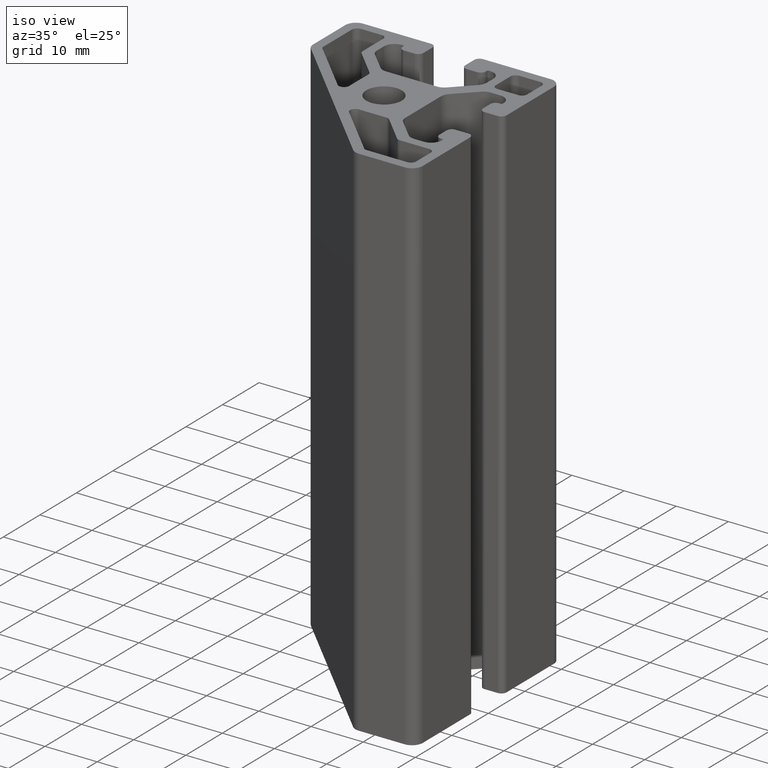
[diagram: clean part render]
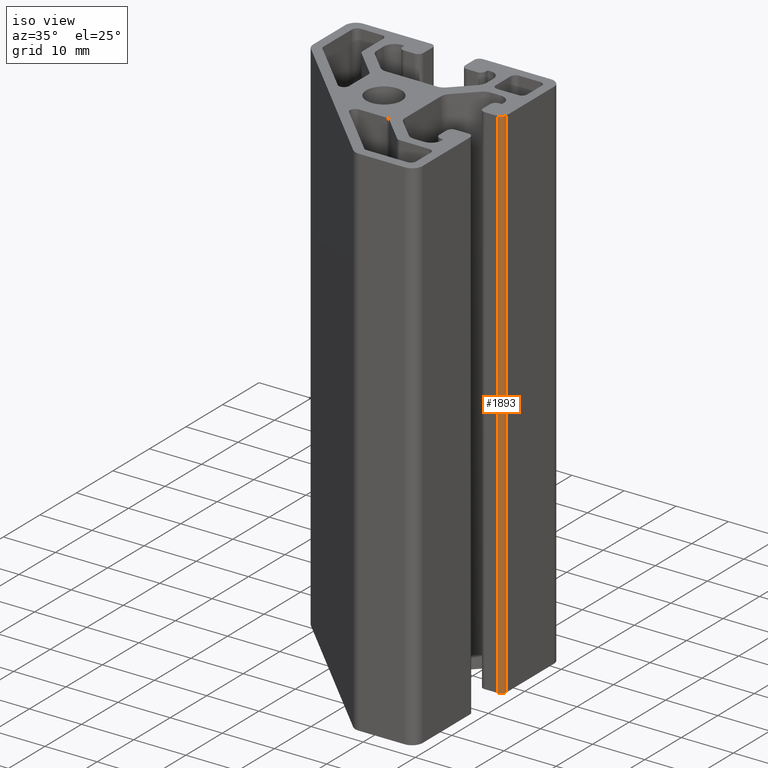
[diagram: same view with one face highlighted and labeled with its STEP entity id]
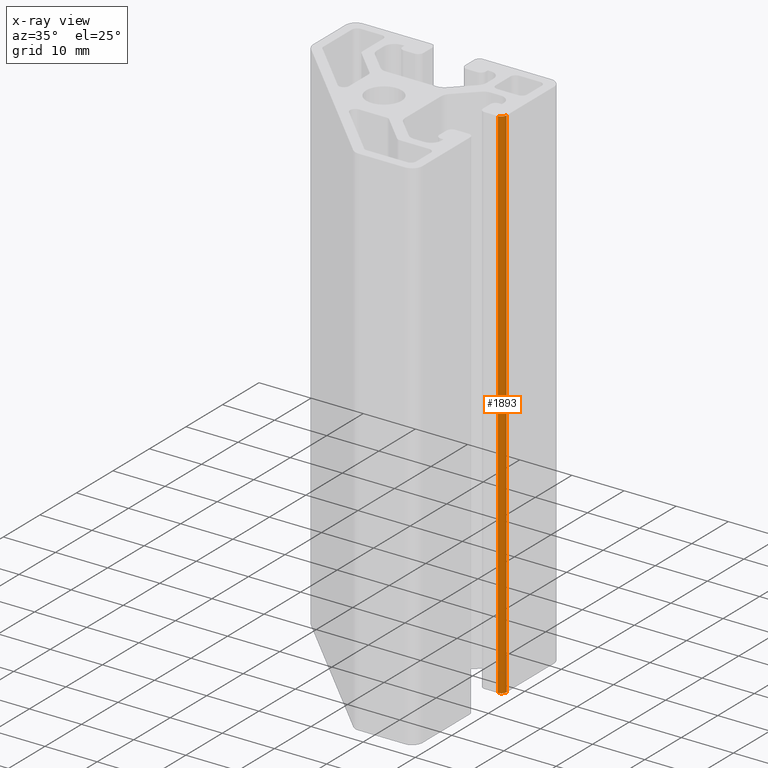
[diagram: x-ray of the same camera — body ghosted, the highlighted face saturated]
A machine part, iso view. The second image highlights one B-rep face of the part: STEP entity #1893.
The next image is the same camera in x-ray: the body ghosted, the highlighted face saturated — about 0% of this face is hidden behind the body in this view.
In plain terms, the highlighted cylindrical surface (edge-blend (fillet) strip) has radius 1 mm, axis along (0, 0, 1).
Its self-contained STEP definition (entity closure, byte-faithful):
#126=FACE_OUTER_BOUND('',#224,.T.);
#224=EDGE_LOOP('',(#1430,#1431,#1432,#1433));
#380=LINE('',#3019,#572);
#381=LINE('',#3022,#573);
#572=VECTOR('',#2444,100.);
#573=VECTOR('',#2447,100.);
#714=CIRCLE('',#2045,0.99999800405115);
#715=CIRCLE('',#2046,0.99999800405115);
#860=VERTEX_POINT('',#3015);
#861=VERTEX_POINT('',#3016);
#862=VERTEX_POINT('',#3018);
#863=VERTEX_POINT('',#3020);
#1098=EDGE_CURVE('',#860,#861,#714,.T.);
#1099=EDGE_CURVE('',#862,#860,#380,.T.);
#1100=EDGE_CURVE('',#863,#862,#715,.T.);
#1101=EDGE_CURVE('',#861,#863,#381,.T.);
#1430=ORIENTED_EDGE('',*,*,#1098,.F.);
#1431=ORIENTED_EDGE('',*,*,#1099,.F.);
#1432=ORIENTED_EDGE('',*,*,#1100,.F.);
#1433=ORIENTED_EDGE('',*,*,#1101,.F.);
#1822=CYLINDRICAL_SURFACE('',#2044,0.99999800405115);
#1893=ADVANCED_FACE('',(#126),#1822,.T.);
#2044=AXIS2_PLACEMENT_3D('',#3014,#2440,#2441);
#2045=AXIS2_PLACEMENT_3D('',#3017,#2442,#2443);
#2046=AXIS2_PLACEMENT_3D('',#3021,#2445,#2446);
#2440=DIRECTION('center_axis',(0.,0.,1.));
#2441=DIRECTION('ref_axis',(-4.44090096231179E-15,1.,0.));
#2442=DIRECTION('center_axis',(0.,0.,1.));
#2443=DIRECTION('ref_axis',(-4.44090096231179E-15,1.,0.));
#2444=DIRECTION('',(0.,0.,1.));
#2445=DIRECTION('center_axis',(0.,0.,-1.));
#2446=DIRECTION('ref_axis',(-4.44090096231179E-15,1.,0.));
#2447=DIRECTION('',(0.,0.,-1.));
#3014=CARTESIAN_POINT('Origin',(19.0000019959488,4.99999800405114,0.));
#3015=CARTESIAN_POINT('',(19.0000019959489,3.99999999999999,100.));
#3016=CARTESIAN_POINT('',(20.,4.99999800405114,100.));
#3017=CARTESIAN_POINT('Origin',(19.0000019959488,4.99999800405114,100.));
#3018=CARTESIAN_POINT('',(19.0000019959489,3.99999999999999,0.));
#3019=CARTESIAN_POINT('',(19.0000019959489,3.99999999999999,0.));
#3020=CARTESIAN_POINT('',(20.,4.99999800405114,0.));
#3021=CARTESIAN_POINT('Origin',(19.0000019959488,4.99999800405114,0.));
#3022=CARTESIAN_POINT('',(20.,4.99999800405114,0.));